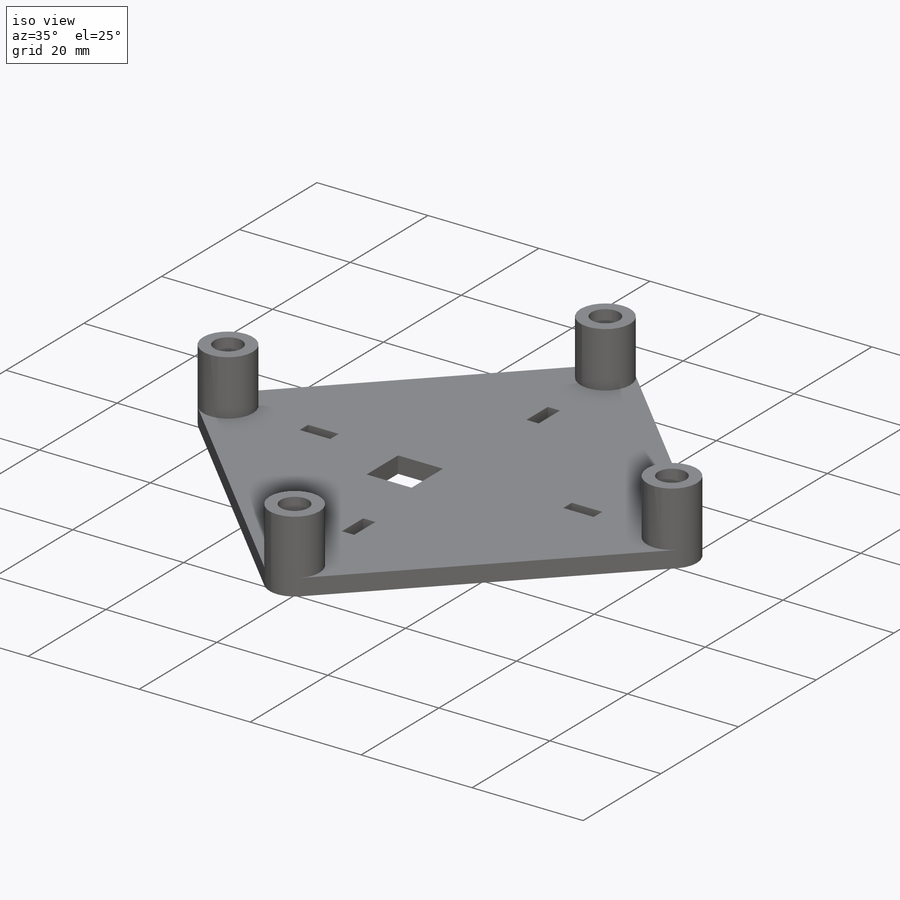
[diagram: iso view]
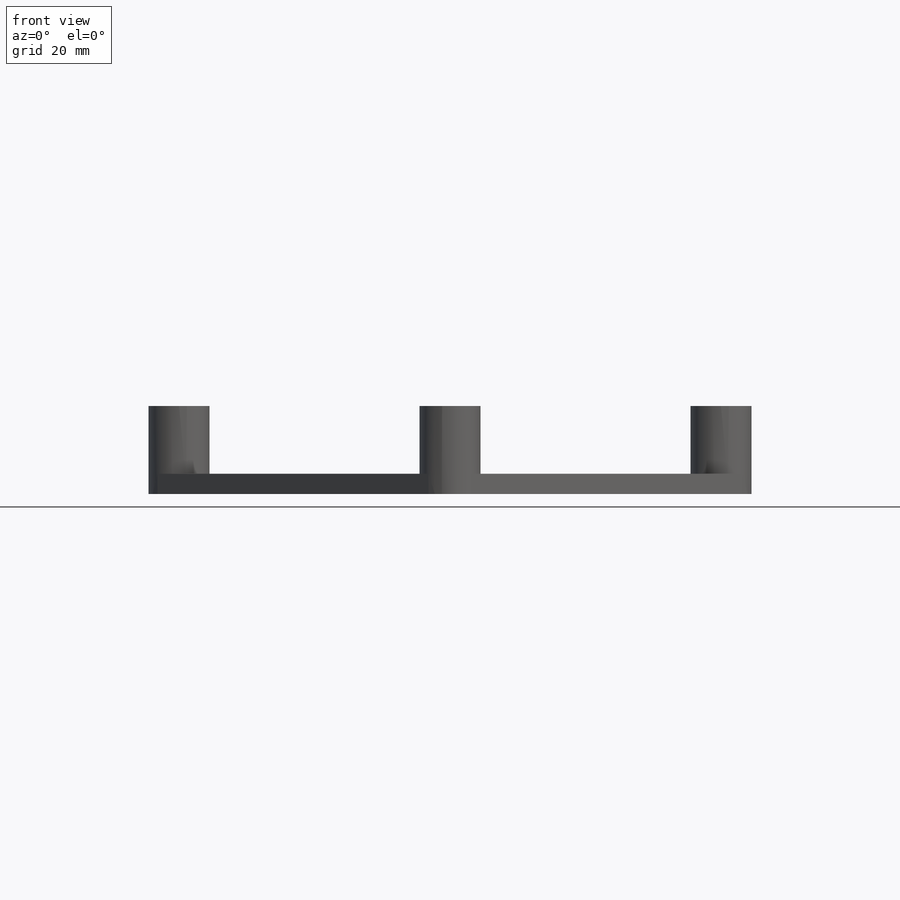
[diagram: front view]
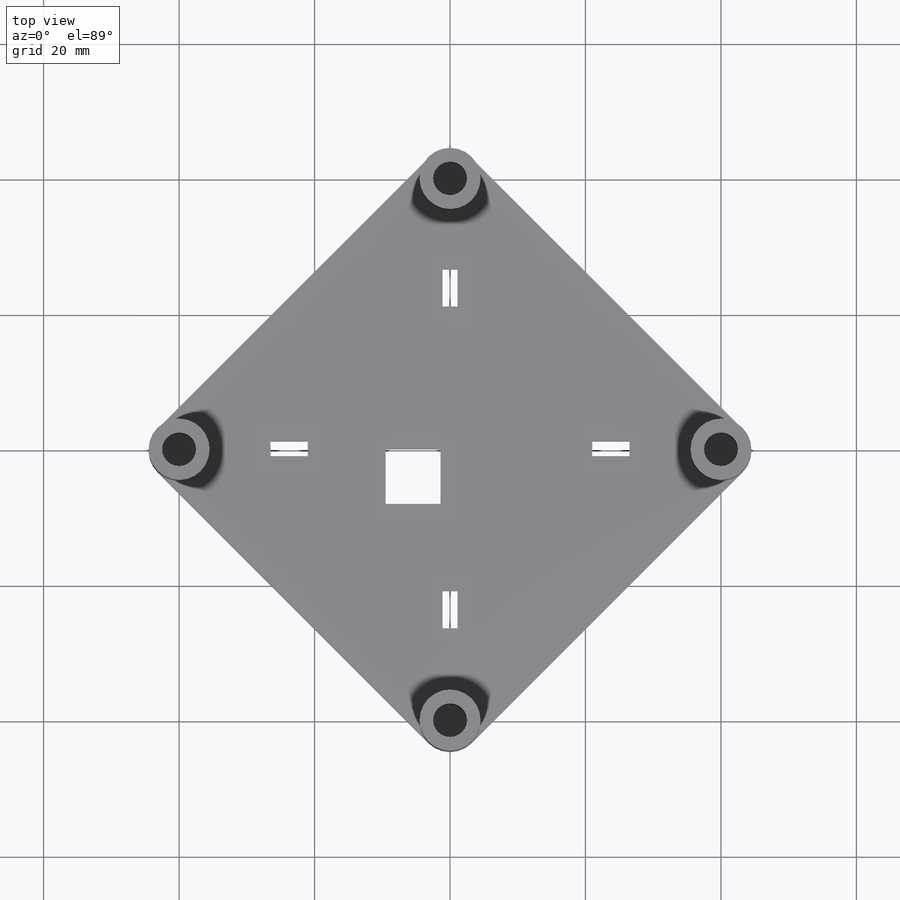
[diagram: top view]
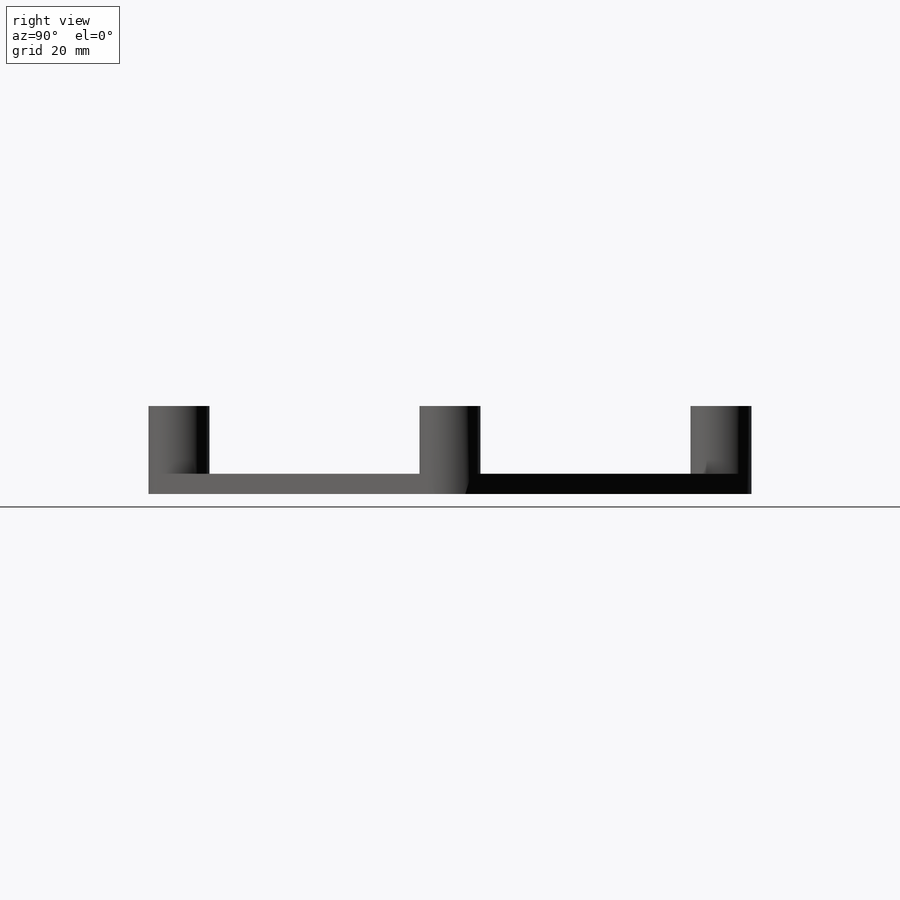
[diagram: right view]
SOLIDWORKS PART (.sldprt)
format: sldprt  version: not decoded by parser v0  size: 232,960 bytes
history: native  units: mm
features: sketch x6, cut_extrude x3, extrude x2, material x1 (+11 scaffold rows collapsed)
feature tree (23):
  scaffold x11  (default folders/planes/origin — collapsed)
  material  "Material <not specified>"
  sketch  "Sketch1"  dims[D1=100.0mm D2=100.0mm]
  extrude  "Boss-Extrude1"  Depth=3mm
  sketch  "Sketch2"  dims[D1=40.0mm D2=2.0mm D3=4.0]
  extrude  "Boss-Extrude2"  Depth=10mm
  sketch  "Sketch3"  dims[D1=48.0mm D2=5.5mm D3=2.2mm D5=2.0mm D4=4.0]
  sketch  "Sketch9"  dims[D1=4.5mm D2=4.5mm]
  cut_extrude  "Cut-Extrude5"  Depth=127mm
  sketch  "3DSketch2"
  sketch  "Sketch11"  dims[D1=1.0mm D2=3.0mm D3=1.5mm D4=8.8mm D5=8.1mm D6=8.1mm]
  cut_extrude  "Cut-Extrude6"  Depth=127mm
  cut_extrude  "Cut-Extrude7"  [1 undecoded]
decode coverage: 9 of 11 modeling features carry decoded parameters
note: 1 parameter value undecoded
note: suppression state not decoded; provenance and decode notes live in map.json
